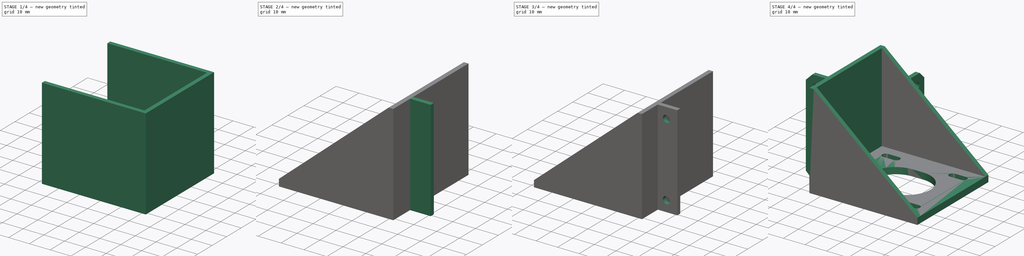
[diagram: build sequence overview — one tinted view per stage of 4, left to right]
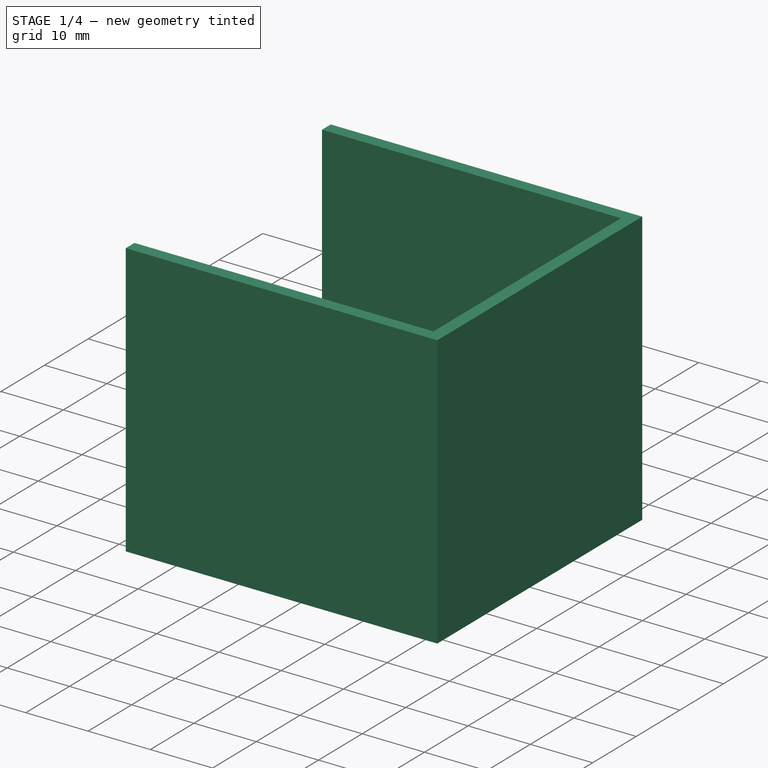
[diagram: stage 1 of 4 — iso view after this stage's code; geometry added in this stage tinted green]
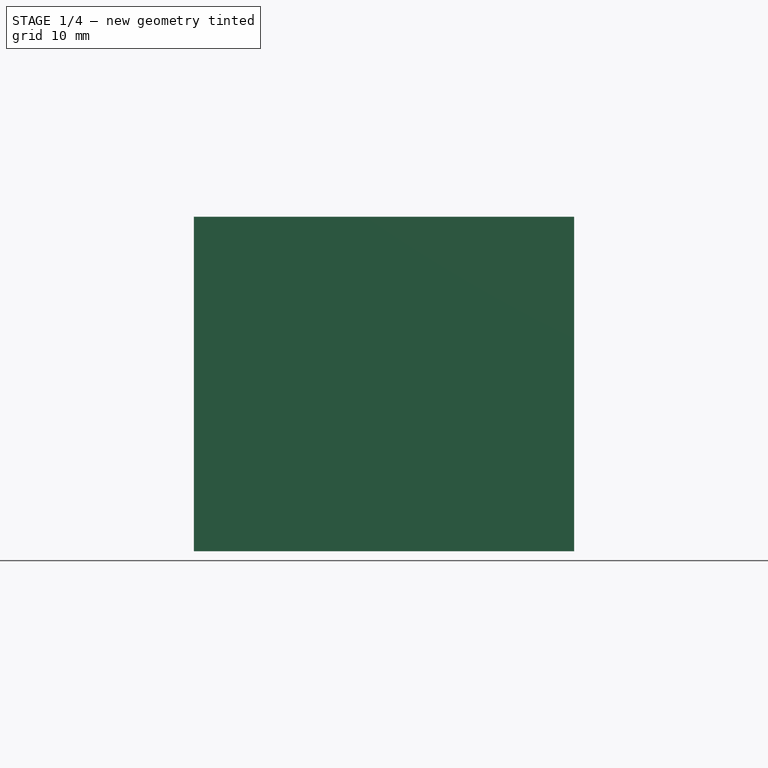
[diagram: stage 1 of 4 — front view after this stage's code; geometry added in this stage tinted green]
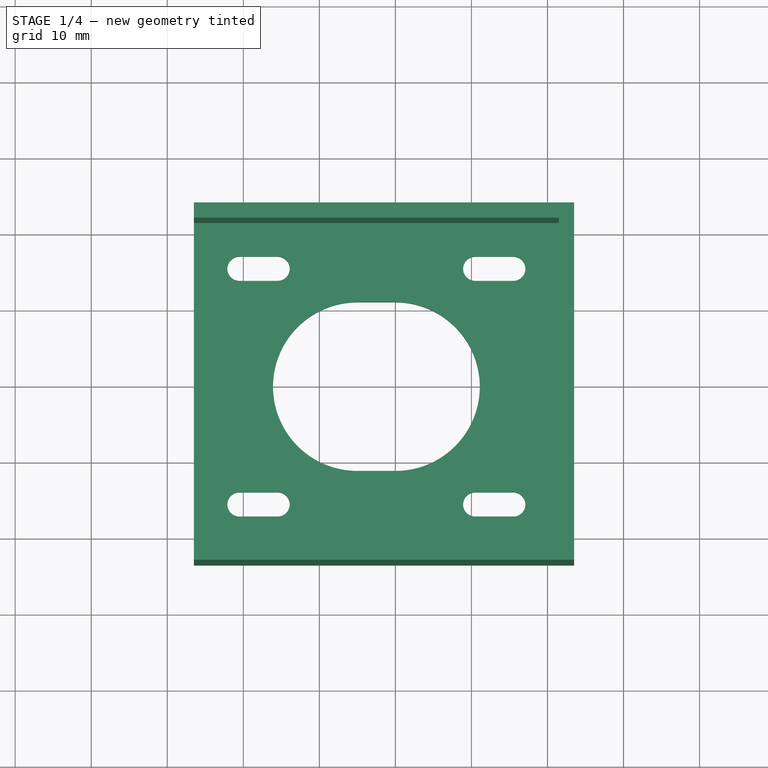
[diagram: stage 1 of 4 — top view after this stage's code; geometry added in this stage tinted green]
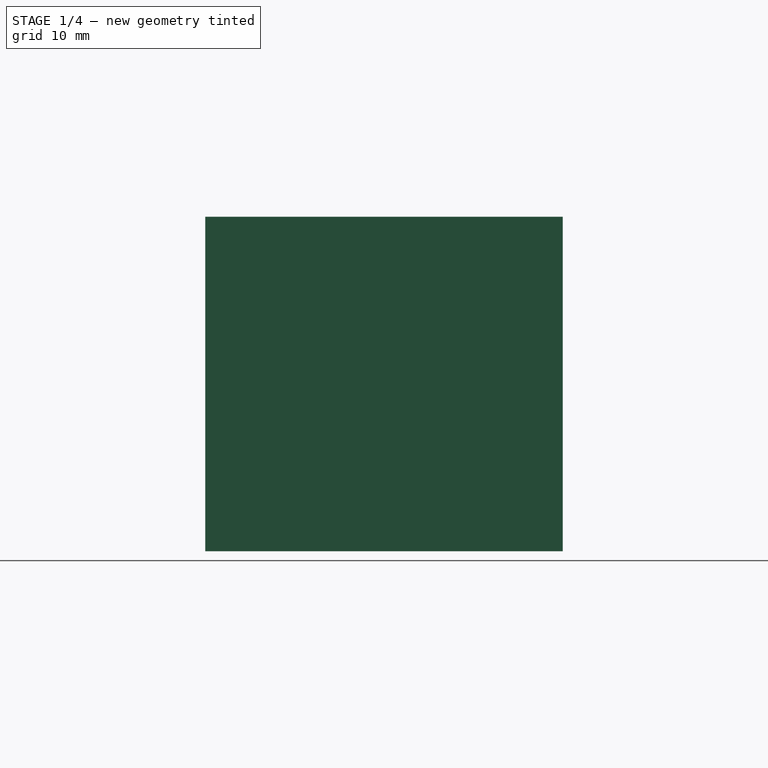
[diagram: stage 1 of 4 — right view after this stage's code; geometry added in this stage tinted green]
FCSTD DOCUMENT  (FreeCAD 0.18.1R)
Label: Motor Mount Right
License: All rights reserved
LicenseURL: http://en.wikipedia.org/wiki/All_rights_reserved
objects: Sketcher::SketchObject×7, PartDesign::Pad×4, PartDesign::Pocket×3, PartDesign::Chamfer×1, PartDesign::Body×1, Spreadsheet::Sheet×1, Part::Mirroring×1
note: 24 computed .brp shape members not serialized (recipe doc carries the construction recipe); baked Part::Feature solids carry a one-line shape summary decoded from their .brp

FEATURE [Sketcher::SketchObject] Sketch  label="Sketch Base Plate"
  MapMode = 5
  Support = -> [XY_Plane]
  expr: Constraints[76] = Screws.m3D
  sketch-geometry (30):
    g0: ArcOfCircle CenterX=0 CenterY=0 CenterZ=0 NormalX=0 NormalY=0 NormalZ=1 AngleXU=0 Radius=11.1 StartAngle=4.71239 EndAngle=7.85398
    g1: ArcOfCircle CenterX=-5 CenterY=-4e-16 CenterZ=0 NormalX=0 NormalY=0 NormalZ=1 AngleXU=0 Radius=11.1 StartAngle=1.5708 EndAngle=4.71239
    g2: LineSegment StartX=3.4e-15 StartY=11.1 StartZ=0 EndX=-5 EndY=11.1 EndZ=0
    g3: LineSegment StartX=-2e-15 StartY=-11.1 StartZ=0 EndX=-5 EndY=-11.1 EndZ=0
    g4: LineSegment StartX=-26.5 StartY=-21.5 StartZ=0 EndX=21.5 EndY=-21.5 EndZ=0
    g5: LineSegment StartX=21.5 StartY=-21.5 StartZ=0 EndX=21.5 EndY=21.5 EndZ=0
    g6: LineSegment StartX=21.5 StartY=21.5 StartZ=0 EndX=-26.5 EndY=21.5 EndZ=0
    g7: LineSegment StartX=-26.5 StartY=21.5 StartZ=0 EndX=-26.5 EndY=-21.5 EndZ=0
    g8: LineSegment [constr] StartX=0 StartY=0 StartZ=0 EndX=0 EndY=21.5 EndZ=0
    g9: LineSegment [constr] StartX=0 StartY=0 StartZ=0 EndX=21.5 EndY=0 EndZ=0
    g10: LineSegment [constr] StartX=-5 StartY=-4e-16 StartZ=0 EndX=-26.5 EndY=-4e-16 EndZ=0
    g11: LineSegment [constr] StartX=-5 StartY=-4e-16 StartZ=0 EndX=-5 EndY=-21.5 EndZ=0
    g12: LineSegment [constr] StartX=-5 StartY=-4e-16 StartZ=0 EndX=-26.5 EndY=-21.5 EndZ=0
    g13: LineSegment [constr] StartX=-5 StartY=-4e-16 StartZ=0 EndX=-26.5 EndY=21.5 EndZ=0
    g14: ArcOfCircle CenterX=-20.5 CenterY=15.5 CenterZ=0 NormalX=0 NormalY=0 NormalZ=1 AngleXU=0 Radius=1.6 StartAngle=1.5708 EndAngle=4.71239
    g15: ArcOfCircle CenterX=-15.5 CenterY=15.5 CenterZ=0 NormalX=0 NormalY=0 NormalZ=1 AngleXU=0 Radius=1.6 StartAngle=4.71239 EndAngle=7.85398
    g16: LineSegment StartX=-20.5 StartY=13.9 StartZ=0 EndX=-15.5 EndY=13.9 EndZ=0
    g17: LineSegment StartX=-20.5 StartY=17.1 StartZ=0 EndX=-15.5 EndY=17.1 EndZ=0
    g18: ArcOfCircle CenterX=-20.5 CenterY=-15.5 CenterZ=0 NormalX=0 NormalY=0 NormalZ=1 AngleXU=0 Radius=1.6 StartAngle=1.5708 EndAngle=4.71239
    g19: ArcOfCircle CenterX=-15.5 CenterY=-15.5 CenterZ=0 NormalX=0 NormalY=0 NormalZ=1 AngleXU=0 Radius=1.6 StartAngle=4.71239 EndAngle=7.85398
    g20: LineSegment StartX=-20.5 StartY=-17.1 StartZ=0 EndX=-15.5 EndY=-17.1 EndZ=0
    g21: LineSegment StartX=-20.5 StartY=-13.9 StartZ=0 EndX=-15.5 EndY=-13.9 EndZ=0
    g22: ArcOfCircle CenterX=10.5 CenterY=-15.5 CenterZ=0 NormalX=0 NormalY=0 NormalZ=1 AngleXU=0 Radius=1.6 StartAngle=1.5708 EndAngle=4.71239
    g23: ArcOfCircle CenterX=15.5 CenterY=-15.5 CenterZ=0 NormalX=0 NormalY=0 NormalZ=1 AngleXU=0 Radius=1.6 StartAngle=4.71239 EndAngle=7.85398
    g24: LineSegment StartX=10.5 StartY=-17.1 StartZ=0 EndX=15.5 EndY=-17.1 EndZ=0
    g25: LineSegment StartX=10.5 StartY=-13.9 StartZ=0 EndX=15.5 EndY=-13.9 EndZ=0
    g26: ArcOfCircle CenterX=10.5 CenterY=15.5 CenterZ=0 NormalX=0 NormalY=0 NormalZ=1 AngleXU=0 Radius=1.6 StartAngle=1.5708 EndAngle=4.71239
    g27: ArcOfCircle CenterX=15.5 CenterY=15.5 CenterZ=0 NormalX=0 NormalY=0 NormalZ=1 AngleXU=0 Radius=1.6 StartAngle=4.71239 EndAngle=7.85398
    g28: LineSegment StartX=10.5 StartY=13.9 StartZ=0 EndX=15.5 EndY=13.9 EndZ=0
    g29: LineSegment StartX=10.5 StartY=17.1 StartZ=0 EndX=15.5 EndY=17.1 EndZ=0
  constraints (77):
    c: Tangent(g0,g3) = 1.5708
    c: Tangent(g0,g2) = -1.5708
    c: Tangent(g2,g1) = -1.5708
    c: Tangent(g3,g1) = 1.5708
    c: Horizontal(g2)
    c: Equal(g0,g1)
    c: Coincident(g0,g-1)
    c: Distance(g1,g3) = 22.2
    c: Distance(g1,g0) = 5
    c: Coincident(g4,g5)
    c: Coincident(g5,g6)
    c: Coincident(g6,g7)
    c: Coincident(g7,g4)
    c: Horizontal(g4)
    c: Horizontal(g6)
    c: Vertical(g5)
    c: Vertical(g7)
    c: Distance(g5) = 43
    c: Coincident(g8,g0)
    c: PointOnObject(g8,g6)
    c: Vertical(g8)
    c: Coincident(g9,g0)
    c: PointOnObject(g9,g5)
    c: Horizontal(g9)
    c: Coincident(g10,g1)
    c: PointOnObject(g10,g7)
    c: Horizontal(g10)
    c: Coincident(g11,g1)
    c: PointOnObject(g11,g4)
    c: Vertical(g11)
    c: Equal(g8,g9)
    c: Equal(g9,g10)
    c: Equal(g10,g11)
    c: Coincident(g12,g1)
    c: Coincident(g12,g4)
    c: Coincident(g13,g1)
    c: Coincident(g13,g6)
    c: Tangent(g14,g17) = 1.5708
    c: Tangent(g14,g16) = -1.5708
    c: Tangent(g16,g15) = -1.5708
    c: Tangent(g17,g15) = 1.5708
    c: Horizontal(g16)
    c: Equal(g14,g15)
    c: PointOnObject(g14,g13)
    c: Tangent(g18,g21) = 1.5708
    c: Tangent(g18,g20) = -1.5708
    c: Tangent(g20,g19) = -1.5708
    c: Tangent(g21,g19) = 1.5708
    c: Horizontal(g20)
    c: Equal(g18,g19)
    c: PointOnObject(g18,g12)
    c: Tangent(g22,g25) = 1.5708
    c: Tangent(g22,g24) = -1.5708
    c: Tangent(g24,g23) = -1.5708
    c: Tangent(g25,g23) = 1.5708
    c: Horizontal(g24)
    c: Equal(g22,g23)
    c: Tangent(g26,g29) = 1.5708
    c: Tangent(g26,g28) = -1.5708
    c: Tangent(g28,g27) = -1.5708
    c: Tangent(g29,g27) = 1.5708
    c: Horizontal(g28)
    c: Equal(g26,g27)
    c: Equal(g16,g21)
    c: Equal(g21,g25)
    c: Equal(g25,g28)
    c: Equal(g15,g19)
    c: Equal(g19,g22)
    c: Equal(g22,g26)
    c: Horizontal(g14,g26)
    c: Horizontal(g19,g22)
    c: Vertical(g18,g14)
    c: Vertical(g22,g26)
    c: Distance(g26,g22) = 31
    c: Distance(g18,g22) = 31
    c: Equal(g29,g2)
    c: Diameter(g27) = 3.2
FEATURE [PartDesign::Pad] Pad  label="Base Plate"
  Length = 3
  Length2 = 100
  Profile = -> Sketch
  Type = 0
FEATURE [Sketcher::SketchObject] Sketch001  label="Sketch Shell"
  ExternalGeometry = -> [Pad]
  MapMode = 5
  Support = -> [XY_Plane]
  sketch-geometry (9):
    g0: LineSegment StartX=-26.5 StartY=21.5 StartZ=0 EndX=21.5 EndY=21.5 EndZ=0
    g1: LineSegment StartX=21.5 StartY=21.5 StartZ=0 EndX=21.5 EndY=-21.5 EndZ=0
    g2: LineSegment StartX=21.5 StartY=-21.5 StartZ=0 EndX=-26.5 EndY=-21.5 EndZ=0
    g3: LineSegment StartX=-26.5 StartY=-21.5 StartZ=0 EndX=-26.5 EndY=-23.5 EndZ=0
    g4: LineSegment StartX=-26.5 StartY=-23.5 StartZ=0 EndX=23.5 EndY=-23.5 EndZ=0
    g5: LineSegment StartX=23.5 StartY=-23.5 StartZ=0 EndX=23.5 EndY=23.5 EndZ=0
    g6: LineSegment StartX=23.5 StartY=23.5 StartZ=0 EndX=-26.5 EndY=23.5 EndZ=0
    g7: LineSegment StartX=-26.5 StartY=23.5 StartZ=0 EndX=-26.5 EndY=21.5 EndZ=0
    g8: LineSegment [constr] StartX=21.5 StartY=21.5 StartZ=0 EndX=23.5 EndY=21.5 EndZ=0
  constraints (23):
    c: Coincident(g-3,g0)
    c: Coincident(g0,g-3)
    c: Coincident(g0,g1)
    c: Coincident(g1,g-4)
    c: Coincident(g1,g2)
    c: Coincident(g2,g-4)
    c: Coincident(g2,g3)
    c: Vertical(g3)
    c: Coincident(g3,g4)
    c: Horizontal(g4)
    c: Coincident(g4,g5)
    c: Vertical(g5)
    c: Coincident(g5,g6)
    c: Horizontal(g6)
    c: Coincident(g6,g7)
    c: Coincident(g7,g0)
    c: Vertical(g7)
    c: Coincident(g8,g0)
    c: PointOnObject(g8,g5)
    c: Horizontal(g8)
    c: Equal(g8,g7)
    c: Equal(g7,g3)
    c: Distance(g7) = 2
FEATURE [PartDesign::Pad] Pad001  label="Shell"
  BaseFeature = -> Pad
  Length = 44
  Length2 = 100
  Profile = -> Sketch001
  Type = 0
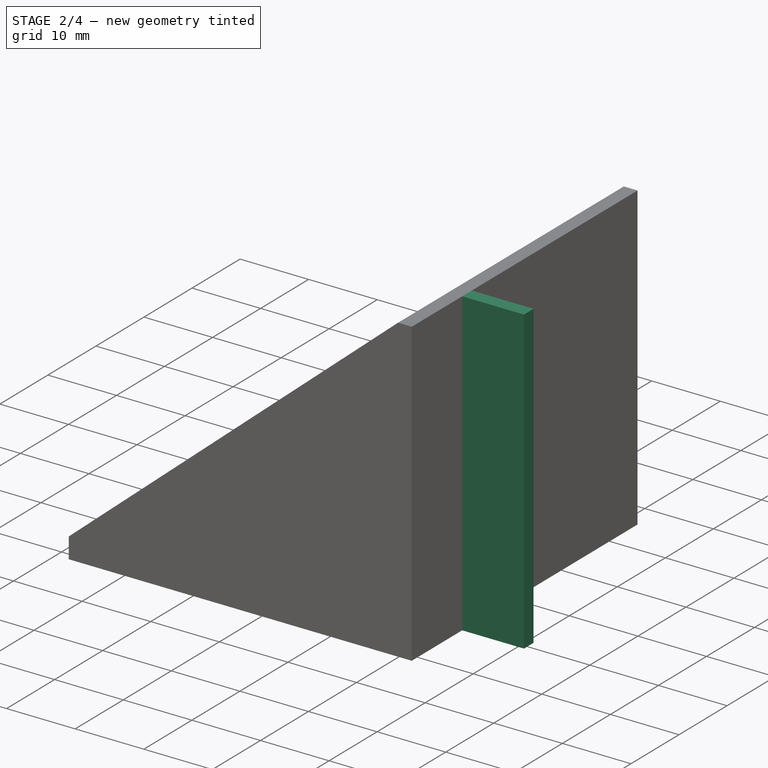
[diagram: stage 2 of 4 — iso view after this stage's code; geometry added in this stage tinted green]
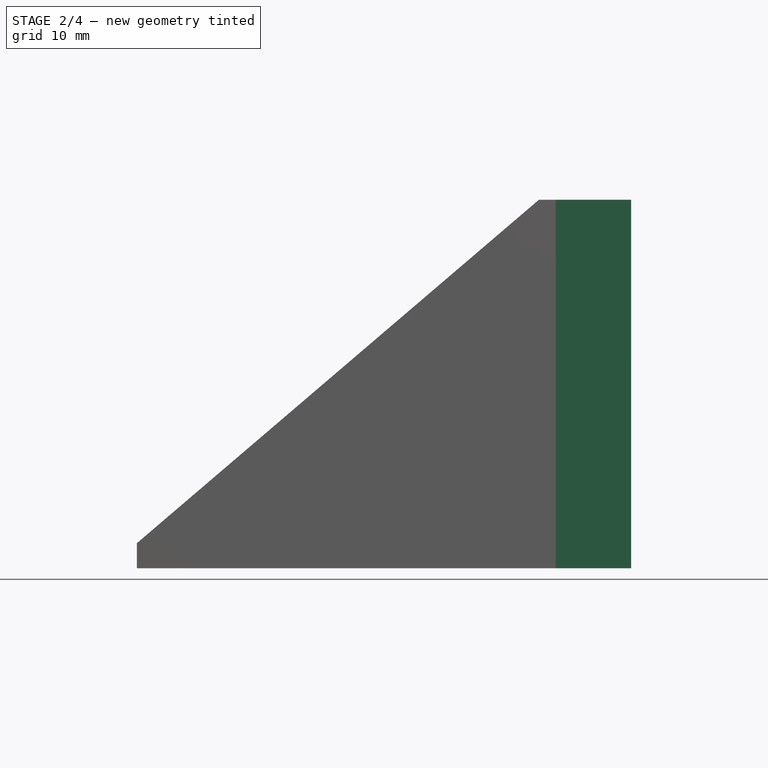
[diagram: stage 2 of 4 — front view after this stage's code; geometry added in this stage tinted green]
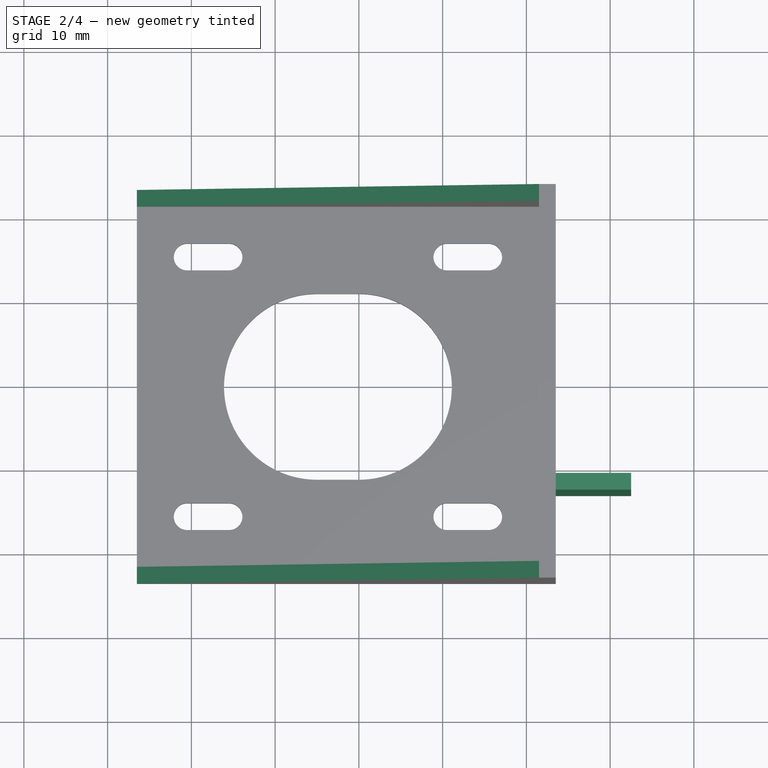
[diagram: stage 2 of 4 — top view after this stage's code; geometry added in this stage tinted green]
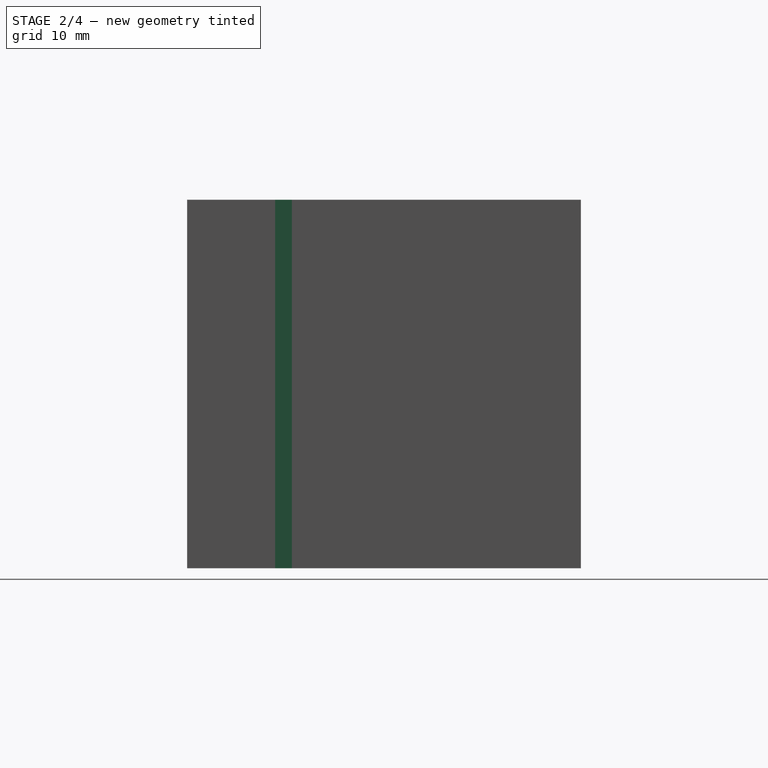
[diagram: stage 2 of 4 — right view after this stage's code; geometry added in this stage tinted green]
FEATURE [Sketcher::SketchObject] Sketch002  label="Sketch Shell Profile Cut"
  ExternalGeometry = -> [Pad001]
  MapMode = 5
  Placement = pos=(0,-23.5,0) rot=(1,0,0;1.5708rad)
  Support = -> [Pad001]
  sketch-geometry (3):
    g0: LineSegment StartX=-26.5 StartY=3 StartZ=0 EndX=21.5 EndY=44 EndZ=0
    g1: LineSegment StartX=21.5 StartY=44 StartZ=0 EndX=-26.5 EndY=44 EndZ=0
    g2: LineSegment StartX=-26.5 StartY=44 StartZ=0 EndX=-26.5 EndY=3 EndZ=0
  constraints (6):
    c: Coincident(g0,g-3)
    c: Coincident(g0,g-4)
    c: Coincident(g0,g1)
    c: Coincident(g1,g-5)
    c: Coincident(g1,g2)
    c: Coincident(g2,g0)
FEATURE [PartDesign::Pocket] Pocket  label="Shell Profile Cut"
  BaseFeature = -> Pad001
  Length = 5
  Length2 = 100
  Profile = -> Sketch002
  Type = 1
FEATURE [Sketcher::SketchObject] Sketch003  label="Sketch Pad Back"
  ExternalGeometry = -> [Pocket]
  MapMode = 5
  Placement = pos=(23.5,0,0) rot=(0.57735,0.57735,0.57735;2.0944rad)
  Support = -> [Pocket]
  sketch-geometry (4):
    g0: LineSegment StartX=-13 StartY=44 StartZ=0 EndX=-11 EndY=44 EndZ=0
    g1: LineSegment StartX=-11 StartY=44 StartZ=0 EndX=-11 EndY=0 EndZ=0
    g2: LineSegment StartX=-11 StartY=0 StartZ=0 EndX=-13 EndY=0 EndZ=0
    g3: LineSegment StartX=-13 StartY=0 StartZ=0 EndX=-13 EndY=44 EndZ=0
  constraints (12):
    c: Coincident(g0,g1)
    c: Coincident(g1,g2)
    c: Coincident(g2,g3)
    c: Coincident(g3,g0)
    c: Horizontal(g0)
    c: Horizontal(g2)
    c: Vertical(g1)
    c: Vertical(g3)
    c: PointOnObject(g0,g-3)
    c: PointOnObject(g1,g-1)
    c: Distance(g0) = 2
    c: Distance(g0,g-3) = 34.5
FEATURE [PartDesign::Pad] Pad002  label="Pad Back"
  BaseFeature = -> Pocket
  Length = 9
  Length2 = 100
  Profile = -> Sketch003
  Type = 0
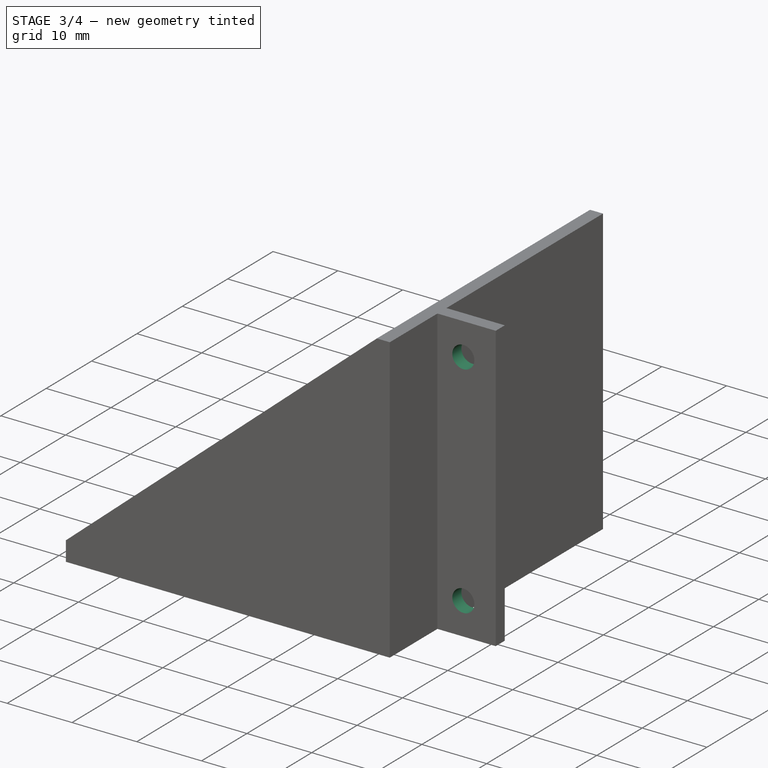
[diagram: stage 3 of 4 — iso view after this stage's code; geometry added in this stage tinted green]
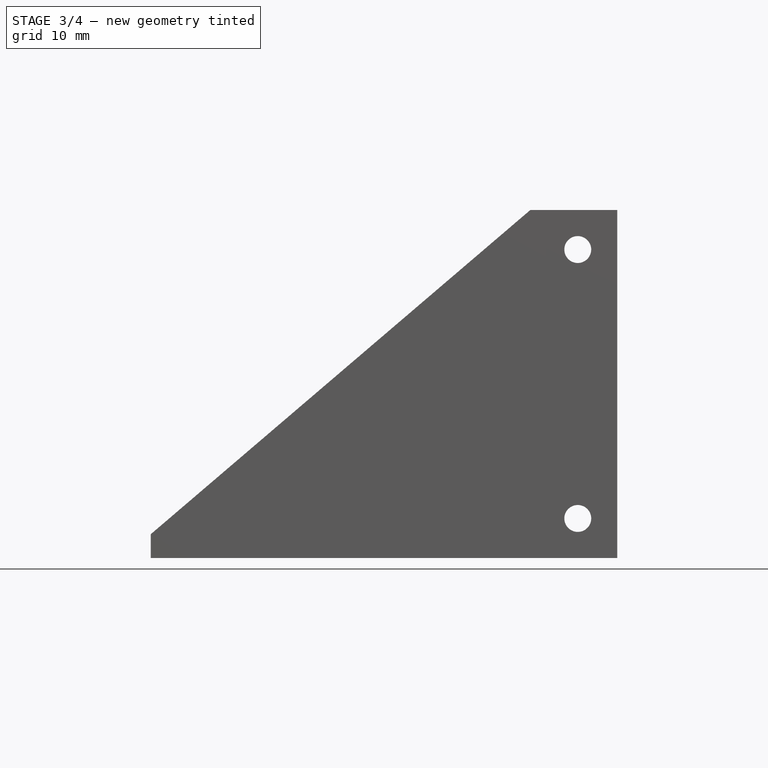
[diagram: stage 3 of 4 — front view after this stage's code; geometry added in this stage tinted green]
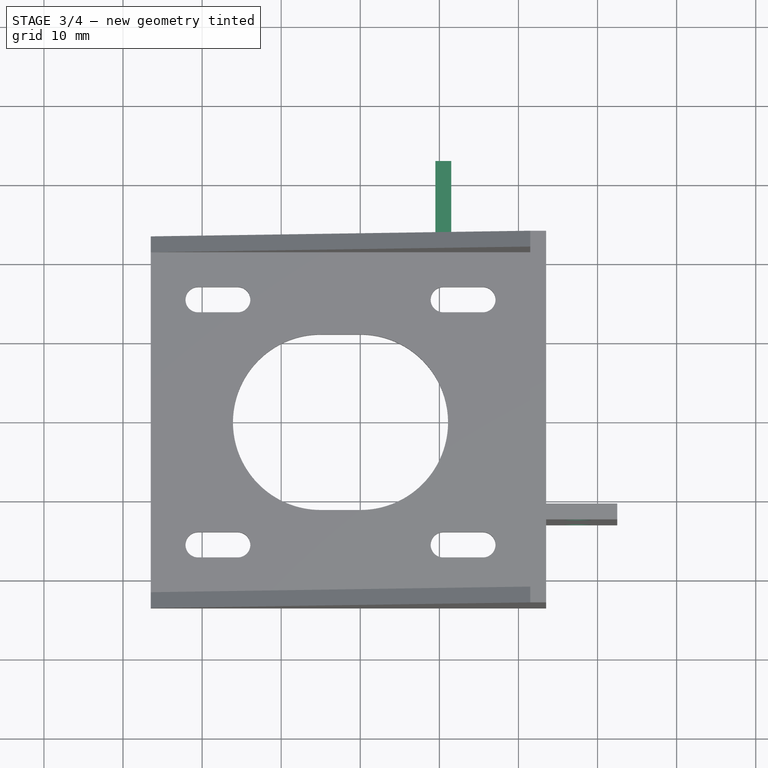
[diagram: stage 3 of 4 — top view after this stage's code; geometry added in this stage tinted green]
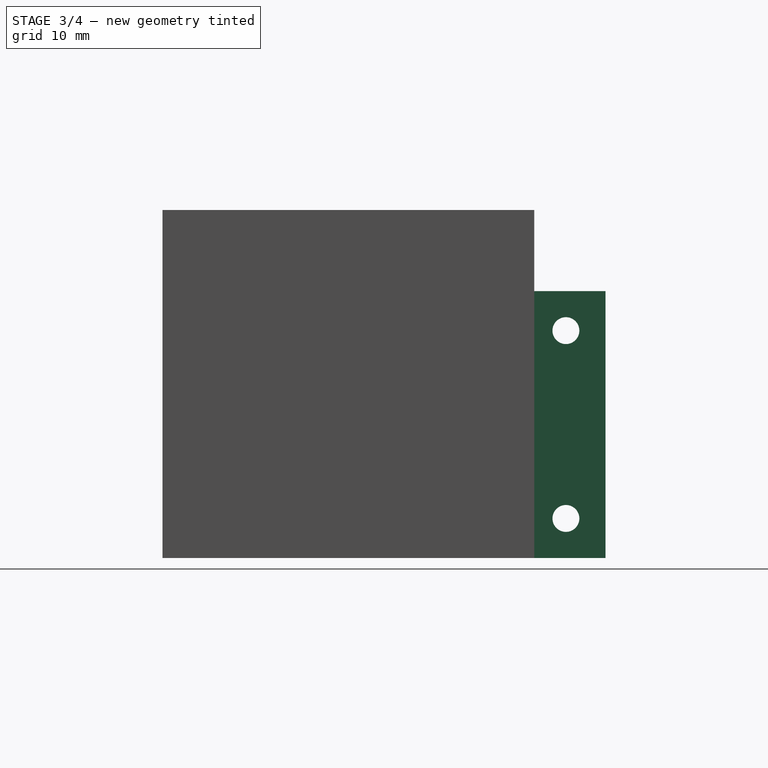
[diagram: stage 3 of 4 — right view after this stage's code; geometry added in this stage tinted green]
FEATURE [Sketcher::SketchObject] Sketch004  label="Sketch Pad Side"
  ExternalGeometry = -> [Pad002]
  MapMode = 5
  Placement = pos=(0,23.5,0) rot=(0,0.707107,0.707107;3.14159rad)
  Support = -> [Pad002]
  sketch-geometry (4):
    g0: LineSegment StartX=-9.5 StartY=0 StartZ=0 EndX=-9.5 EndY=33.75 EndZ=0
    g1: LineSegment StartX=-9.5 StartY=33.75 StartZ=0 EndX=-11.5 EndY=33.75 EndZ=0
    g2: LineSegment StartX=-11.5 StartY=33.75 StartZ=0 EndX=-11.5 EndY=0 EndZ=0
    g3: LineSegment StartX=-11.5 StartY=0 StartZ=0 EndX=-9.5 EndY=0 EndZ=0
  constraints (13):
    c: PointOnObject(g0,g-1)
    c: PointOnObject(g0,g-4)
    c: Vertical(g0)
    c: Coincident(g0,g1)
    c: Coincident(g1,g2)
    c: PointOnObject(g2,g-1)
    c: Vertical(g2)
    c: Coincident(g2,g3)
    c: Coincident(g3,g0)
    c: Distance(g3) = 2
    c: Distance(g2,g-3) = 12
    c: Horizontal(g1)
    c: Distance(g0) = 33.75
FEATURE [PartDesign::Pad] Pad003  label="Pad Side"
  BaseFeature = -> Pad002
  Length = 9
  Length2 = 100
  Profile = -> Sketch004
  Type = 0
FEATURE [Sketcher::SketchObject] Sketch005  label="Sketch Side Holes"
  ExternalGeometry = -> [Pad003]
  MapMode = 5
  Placement = pos=(9.5,0,0) rot=(0.57735,-0.57735,-0.57735;2.0944rad)
  Support = -> [Pad003]
  expr: Constraints[8] = Screws.m3tD
  sketch-geometry (4):
    g0: Circle CenterX=-27.5 CenterY=28.75 CenterZ=0 NormalX=0 NormalY=0 NormalZ=1 AngleXU=0 Radius=1.7
    g1: Circle CenterX=-27.5 CenterY=5 CenterZ=0 NormalX=0 NormalY=0 NormalZ=1 AngleXU=0 Radius=1.7
    g2: LineSegment [constr] StartX=-27.5 StartY=28.75 StartZ=0 EndX=-27.5 EndY=33.75 EndZ=0
    g3: LineSegment [constr] StartX=-27.5 StartY=5 StartZ=0 EndX=-27.5 EndY=0 EndZ=0
  constraints (13):
    c: Vertical(g0,g1)
    c: Equal(g0,g1)
    c: Coincident(g2,g0)
    c: PointOnObject(g2,g-4)
    c: Vertical(g2)
    c: Coincident(g3,g1)
    c: PointOnObject(g3,g-1)
    c: Vertical(g3)
    c: Diameter(g0) = 3.4
    c: Distance(g2) = 5
    c: Distance(g0,g-3) = 4
    c: Equal(g3,g2)
    c: Distance(g0,g1) = 23.75
FEATURE [PartDesign::Pocket] Pocket001  label="Side Holes"
  BaseFeature = -> Pad003
  Length = 5
  Length2 = 100
  Profile = -> Sketch005
  Type = 1
FEATURE [Sketcher::SketchObject] Sketch006  label="Sketch Back Holes"
  ExternalGeometry = -> [Pocket001]
  MapMode = 5
  Placement = pos=(0,-13,0) rot=(1,0,0;1.5708rad)
  Support = -> [Pocket001]
  expr: Constraints[5] = Screws.m3tD
  sketch-geometry (2):
    g0: Circle CenterX=27.5 CenterY=39 CenterZ=0 NormalX=0 NormalY=0 NormalZ=1 AngleXU=0 Radius=1.7
    g1: Circle CenterX=27.5 CenterY=5 CenterZ=0 NormalX=0 NormalY=0 NormalZ=1 AngleXU=0 Radius=1.7
  constraints (6):
    c: Vertical(g1,g0)
    c: Equal(g0,g1)
    c: DistanceX(g-3,g1) = 4
    c: DistanceY(g-3,g1) = 5
    c: DistanceY(g0,g-4) = 5
    c: Diameter(g0) = 3.4
FEATURE [PartDesign::Pocket] Pocket002  label="Back Holes"
  BaseFeature = -> Pocket001
  Length = 5
  Length2 = 100
  Profile = -> Sketch006
  Type = 1
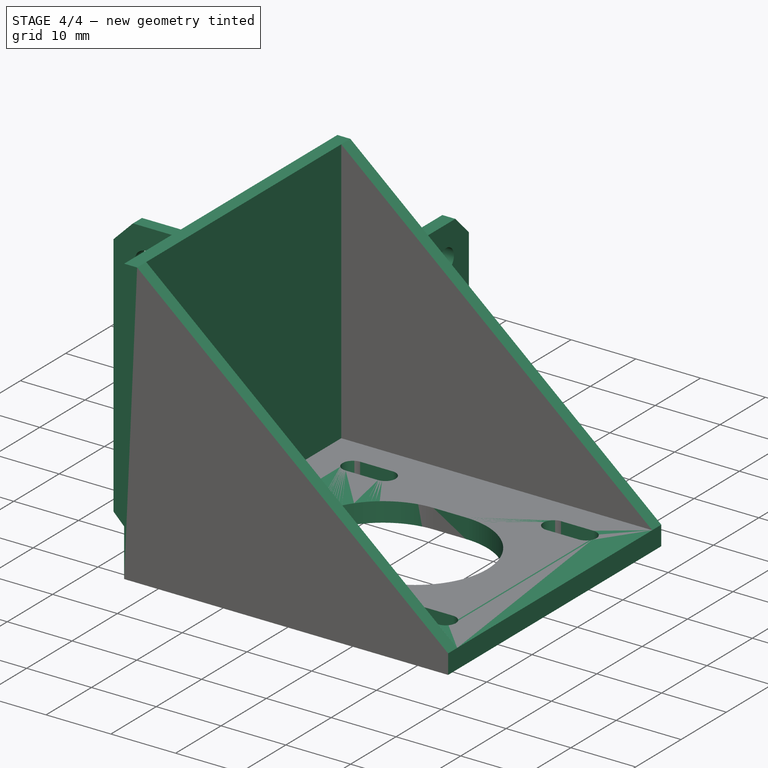
[diagram: stage 4 of 4 — iso view after this stage's code; geometry added in this stage tinted green]
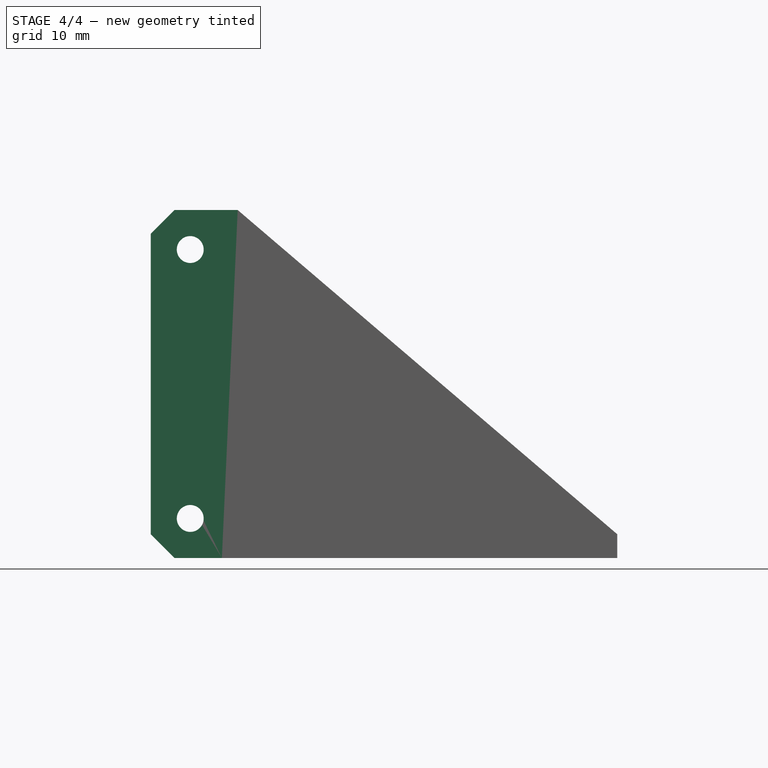
[diagram: stage 4 of 4 — front view after this stage's code; geometry added in this stage tinted green]
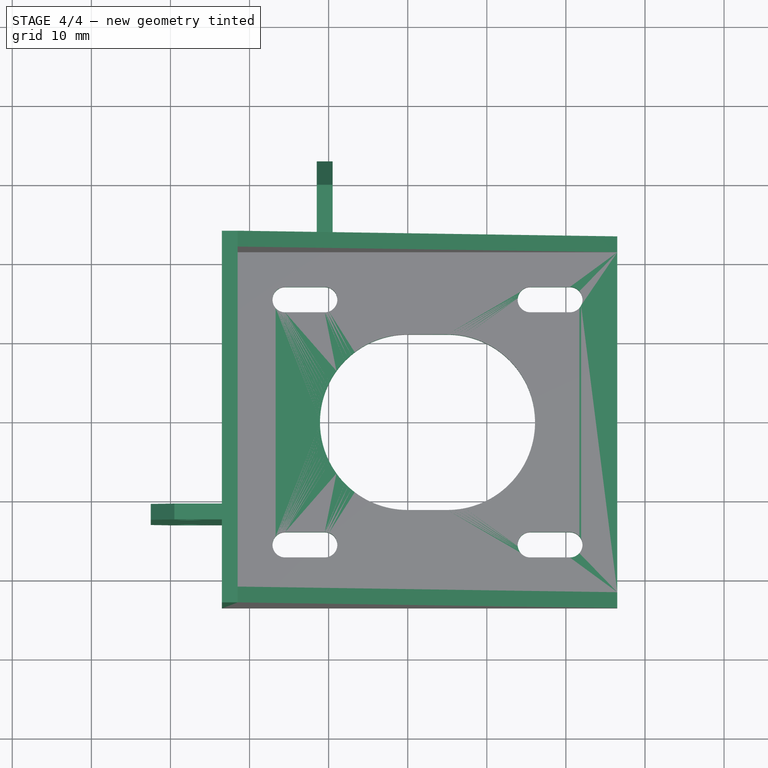
[diagram: stage 4 of 4 — top view after this stage's code; geometry added in this stage tinted green]
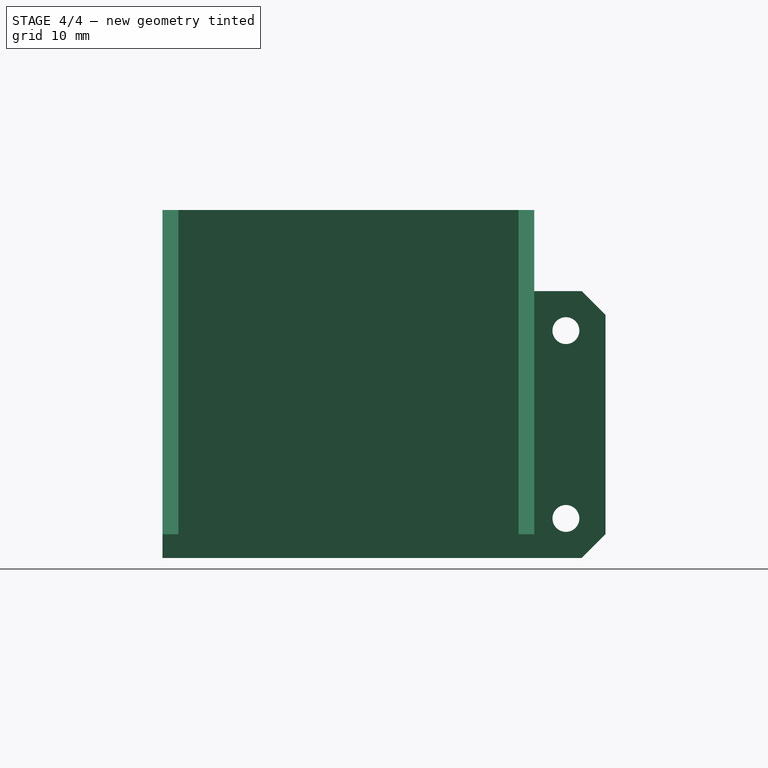
[diagram: stage 4 of 4 — right view after this stage's code; geometry added in this stage tinted green]
FEATURE [PartDesign::Chamfer] Chamfer  label="Pads Chamfers"
  Base = -> Pocket002 [Edge110,Edge129,Edge101,Edge124]
  BaseFeature = -> Pocket002
  Size = 3
FEATURE [PartDesign::Body] Body  label="Motor Mount Left"
  Group = -> [Sketch,Pad,Sketch001,Pad001,Sketch002,Pocket,Sketch003,Pad002,Sketch004,Pad003,Sketch005,Pocket001,Sketch006,Pocket002,Chamfer]
  Origin = -> Origin
  Tip = -> Chamfer
FEATURE [Spreadsheet::Sheet] Spreadsheet  label="Screws"
  cells = A1=Screw Type; B1=Length; D1=Diameter Loose; F1=Diameter Tight; A2=M3 Tapping; B2=m3tl; C2(m3tl)==12mm; D2=m3tD; E2(m3tD)==3.4mm; F2=m3td; G2(m3td)==2.8mm; A3=M3; B3=m3l; C3(m3l)==30mm; D3=m3D; E3(m3D)==3.2mm; F3=m3d; G3(m3d)==2.8mm
FEATURE [Part::Mirroring] Part__Mirroring  label="Motor Mount Right (Mirror)"
  Base = (0,0,0)
  Normal = (1,0,0)
  Source = -> Body
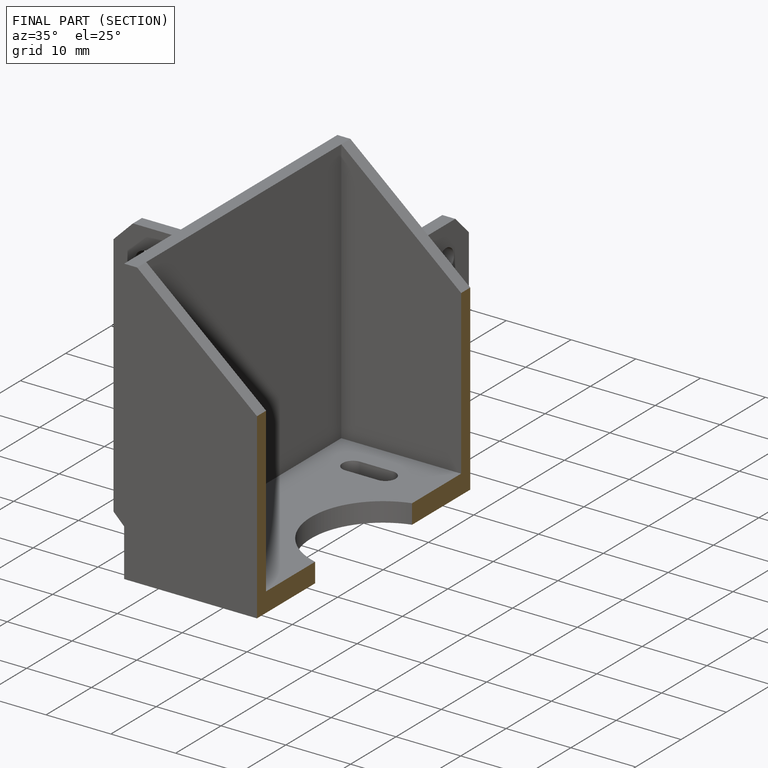
[diagram: finished part — half-section view (interior)]
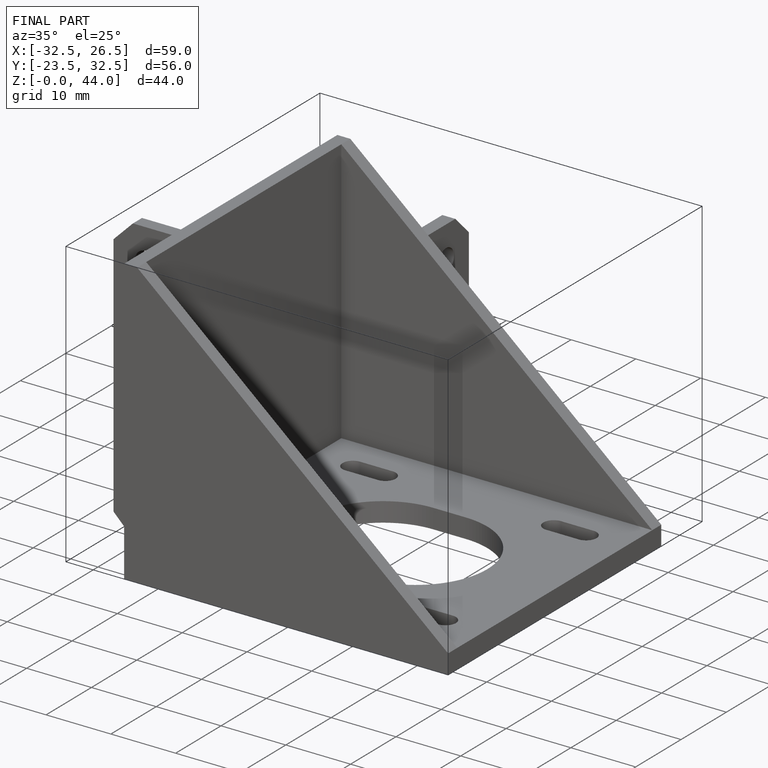
[diagram: finished part — iso view with bounding-box wireframe]
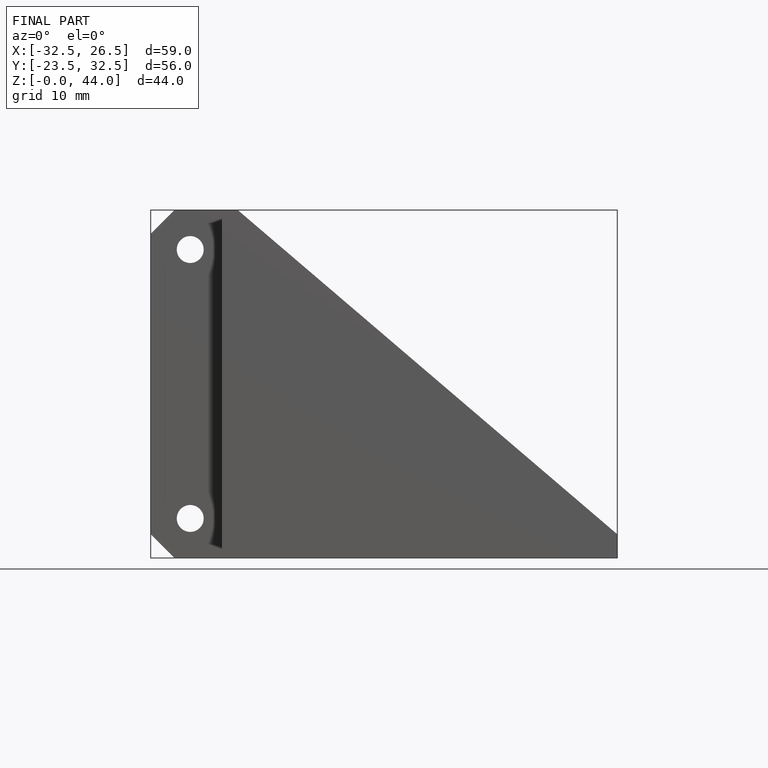
[diagram: finished part — front view with bounding-box wireframe]
